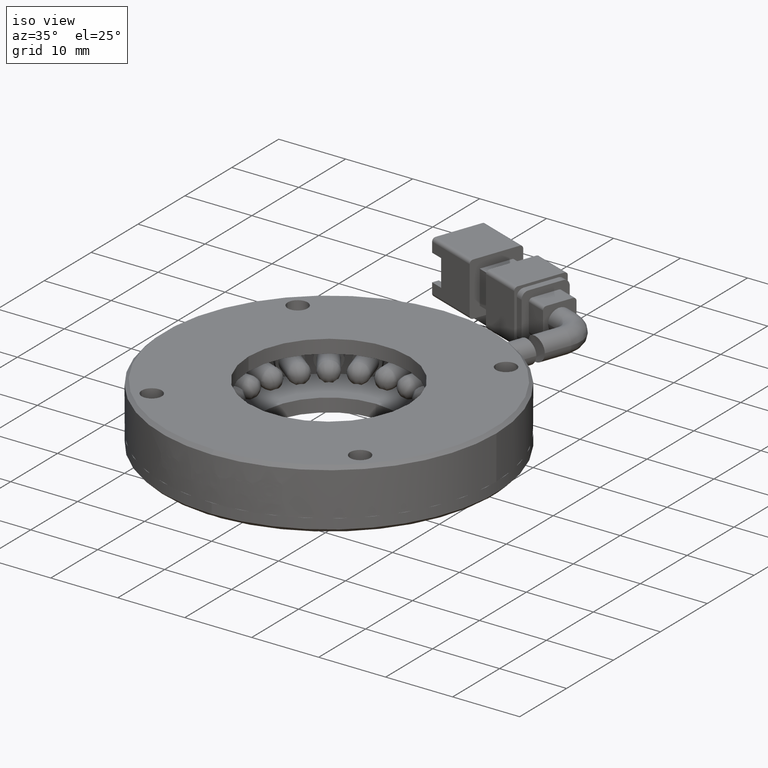
[diagram: clean part render]
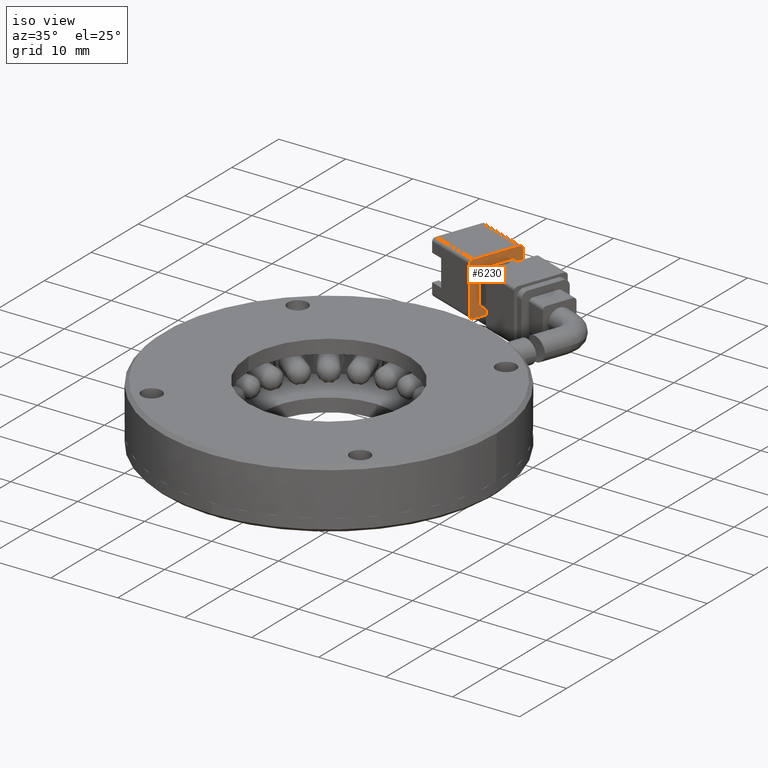
[diagram: same view with one face highlighted and labeled with its STEP entity id]
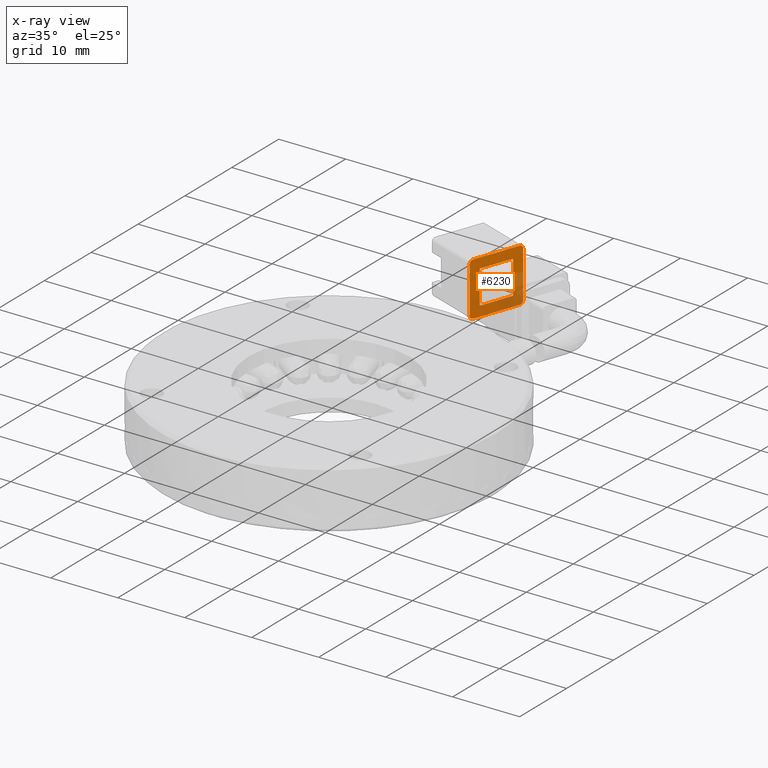
[diagram: x-ray of the same camera — body ghosted, the highlighted face saturated]
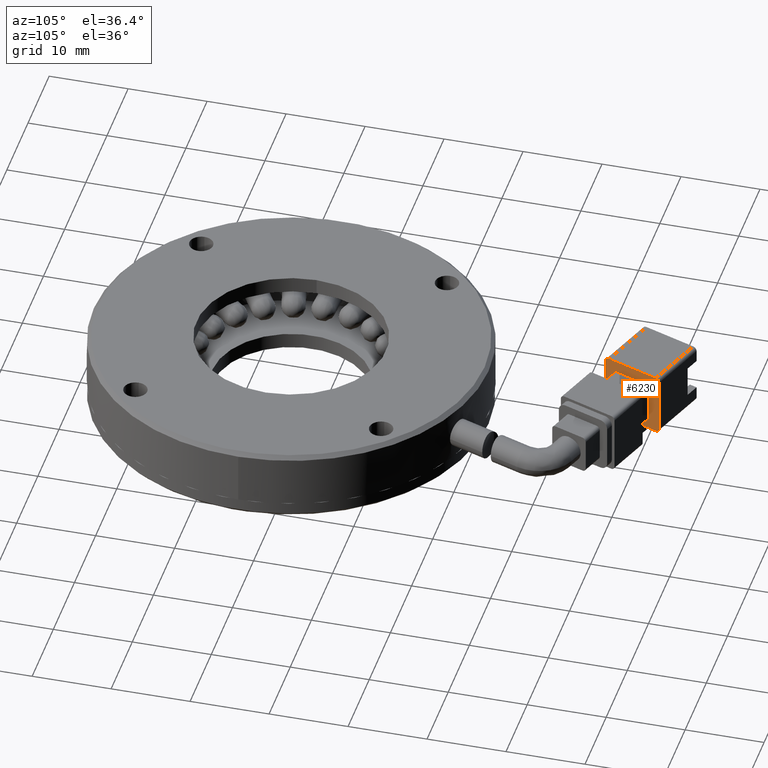
[diagram: same view with one face highlighted and labeled with its STEP entity id]
A machine part, iso view. The second image highlights one B-rep face of the part: STEP entity #6230.
The next image is the same camera in x-ray: the body ghosted, the highlighted face saturated — about 25% of this face is hidden behind the body in this view.
A second angle (auxiliary view) of the same face is appended — the face is thin or edge-on in the first view.
In plain terms, the highlighted planar face has unit normal (0.9397, -0.342, -0).
Its self-contained STEP definition (entity closure, byte-faithful):
#269 = DIRECTION ( 'NONE',  ( 0.9396926207859084300, -0.3420201433256689900, -2.200085921048892600E-016 ) ) ;
#388 = CARTESIAN_POINT ( 'NONE',  ( -126.7747421650352400, 44.70819623715603100, -3.999999999999933400 ) ) ;
#545 = AXIS2_PLACEMENT_3D ( 'NONE', #2363, #3334, #3422 ) ;
#549 = EDGE_CURVE ( 'NONE', #16251, #4658, #15040, .T. ) ;
#599 = DIRECTION ( 'NONE',  ( 0.0000000000000000000, 0.0000000000000000000, 1.000000000000000000 ) ) ;
#647 = EDGE_CURVE ( 'NONE', #24145, #6801, #7918, .T. ) ;
#745 = DIRECTION ( 'NONE',  ( -0.3420201433256692100, -0.9396926207859083200, 2.903288705414649500E-017 ) ) ;
#983 = VERTEX_POINT ( 'NONE', #8931 ) ;
#1137 = VERTEX_POINT ( 'NONE', #18150 ) ;
#1159 = ORIENTED_EDGE ( 'NONE', *, *, #24548, .T. ) ;
#1225 = CIRCLE ( 'NONE', #10808, 0.5000000000000013300 ) ;
#1791 = CARTESIAN_POINT ( 'NONE',  ( -124.5516112334184100, 50.81619827226441500, -2.999999999999930700 ) ) ;
#1881 = DIRECTION ( 'NONE',  ( -0.3420201433256689900, -0.9396926207859084300, 7.782399606232325600E-017 ) ) ;
#2257 = ORIENTED_EDGE ( 'NONE', *, *, #24884, .T. ) ;
#2363 = CARTESIAN_POINT ( 'NONE',  ( -126.6037320933724400, 45.17804254754897600, -3.999999999999934300 ) ) ;
#2822 = ORIENTED_EDGE ( 'NONE', *, *, #22754, .T. ) ;
#3334 = DIRECTION ( 'NONE',  ( -0.9396926207859082100, 0.3420201433256692100, 2.200085921048892100E-016 ) ) ;
#3422 = DIRECTION ( 'NONE',  ( 0.0000000000000000000, 0.0000000000000000000, 1.000000000000000000 ) ) ;
#3520 = DIRECTION ( 'NONE',  ( 0.3420201433256689900, 0.9396926207859084300, -7.782399606232325600E-017 ) ) ;
#3558 = FACE_OUTER_BOUND ( 'NONE', #12011, .T. ) ;
#4122 = CARTESIAN_POINT ( 'NONE',  ( -124.2095910900927600, 51.75589089305034900, 3.000000000000083500 ) ) ;
#4181 = EDGE_CURVE ( 'NONE', #16891, #24791, #6681, .T. ) ;
#4211 = PLANE ( 'NONE',  #19945 ) ;
#4658 = VERTEX_POINT ( 'NONE', #24165 ) ;
#4743 = ORIENTED_EDGE ( 'NONE', *, *, #15493, .T. ) ;
#5197 = CARTESIAN_POINT ( 'NONE',  ( -126.2617119500467900, 46.11773516833485300, -2.999999999999921000 ) ) ;
#6144 = DIRECTION ( 'NONE',  ( 0.0000000000000000000, 0.0000000000000000000, 1.000000000000000000 ) ) ;
#6230 = ADVANCED_FACE ( 'NONE', ( #19436, #3558 ), #4211, .T. ) ;
#6329 = AXIS2_PLACEMENT_3D ( 'NONE', #24448, #12522, #599 ) ;
#6355 = ORIENTED_EDGE ( 'NONE', *, *, #549, .T. ) ;
#6405 = VECTOR ( 'NONE', #14319, 1000.000000000000000 ) ;
#6681 = LINE ( 'NONE', #17622, #21938 ) ;
#6801 = VERTEX_POINT ( 'NONE', #22394 ) ;
#6885 = DIRECTION ( 'NONE',  ( 0.3420201433256689900, 0.9396926207859084300, -7.782399606232325600E-017 ) ) ;
#6912 = VECTOR ( 'NONE', #745, 999.9999999999998900 ) ;
#7069 = EDGE_CURVE ( 'NONE', #12733, #15643, #9530, .T. ) ;
#7126 = VECTOR ( 'NONE', #24469, 1000.000000000000000 ) ;
#7365 = EDGE_CURVE ( 'NONE', #17885, #6801, #22294, .T. ) ;
#7761 = VECTOR ( 'NONE', #18366, 999.9999999999998900 ) ;
#7918 = CIRCLE ( 'NONE', #545, 0.5000000000000022200 ) ;
#7944 = DIRECTION ( 'NONE',  ( 0.9396926207859082100, -0.3420201433256692100, -2.200085921048892100E-016 ) ) ;
#8062 = ORIENTED_EDGE ( 'NONE', *, *, #11905, .T. ) ;
#8379 = LINE ( 'NONE', #16473, #7126 ) ;
#8876 = LINE ( 'NONE', #17433, #14172 ) ;
#8896 = VECTOR ( 'NONE', #23395, 1000.000000000000000 ) ;
#8931 = CARTESIAN_POINT ( 'NONE',  ( -126.2617119500467600, 46.11773516833486000, 2.000000000000079900 ) ) ;
#9479 = ORIENTED_EDGE ( 'NONE', *, *, #7069, .T. ) ;
#9530 = LINE ( 'NONE', #25393, #8896 ) ;
#9557 = EDGE_CURVE ( 'NONE', #24791, #983, #8379, .T. ) ;
#9564 = LINE ( 'NONE', #25477, #24818 ) ;
#9781 = VECTOR ( 'NONE', #6885, 999.9999999999998900 ) ;
#9869 = EDGE_LOOP ( 'NONE', ( #15240, #25709, #18708, #2257 ) ) ;
#10105 = CARTESIAN_POINT ( 'NONE',  ( -126.6037320933724400, 45.17804254754896900, -4.499999999999918300 ) ) ;
#10453 = CARTESIAN_POINT ( 'NONE',  ( -124.0385810184299200, 52.22573720344327300, 3.000000000000072800 ) ) ;
#10749 = CARTESIAN_POINT ( 'NONE',  ( -125.1073939663226200, 49.28919776348730200, -4.499999999999927200 ) ) ;
#10756 = CARTESIAN_POINT ( 'NONE',  ( -124.5516112334184000, 50.81619827226444400, 2.000000000000075500 ) ) ;
#10808 = AXIS2_PLACEMENT_3D ( 'NONE', #19866, #7944, #21867 ) ;
#11719 = CARTESIAN_POINT ( 'NONE',  ( -126.6037320933724400, 45.17804254754899100, 3.500000000000080400 ) ) ;
#11905 = EDGE_CURVE ( 'NONE', #23013, #13982, #17466, .T. ) ;
#12011 = EDGE_LOOP ( 'NONE', ( #1159, #6355, #25812, #9479, #21498, #8062, #4743, #14085, #18170, #2822 ) ) ;
#12195 = CARTESIAN_POINT ( 'NONE',  ( -124.2095910900927300, 51.75589089305032800, -3.999999999999934300 ) ) ;
#12522 = DIRECTION ( 'NONE',  ( -0.9396926207859082100, 0.3420201433256692100, 2.200085921048892100E-016 ) ) ;
#12733 = VERTEX_POINT ( 'NONE', #17503 ) ;
#13449 = LINE ( 'NONE', #17869, #18126 ) ;
#13545 = DIRECTION ( 'NONE',  ( 0.3420201433256689900, 0.9396926207859084300, -7.782399606232325600E-017 ) ) ;
#13982 = VERTEX_POINT ( 'NONE', #11719 ) ;
#14085 = ORIENTED_EDGE ( 'NONE', *, *, #7365, .T. ) ;
#14172 = VECTOR ( 'NONE', #3520, 999.9999999999998900 ) ;
#14195 = DIRECTION ( 'NONE',  ( -0.3420201433256689900, -0.9396926207859084300, 7.782399606232325600E-017 ) ) ;
#14319 = DIRECTION ( 'NONE',  ( -2.333578247978733300E-016, 2.116735384756109300E-018, -1.000000000000000000 ) ) ;
#14872 = VERTEX_POINT ( 'NONE', #10756 ) ;
#15040 = LINE ( 'NONE', #20810, #9781 ) ;
#15179 = EDGE_CURVE ( 'NONE', #14872, #16891, #13449, .T. ) ;
#15211 = CIRCLE ( 'NONE', #23677, 0.5000000000000017800 ) ;
#15240 = ORIENTED_EDGE ( 'NONE', *, *, #15179, .T. ) ;
#15493 = EDGE_CURVE ( 'NONE', #13982, #17885, #1225, .T. ) ;
#15643 = VERTEX_POINT ( 'NONE', #10453 ) ;
#15673 = EDGE_CURVE ( 'NONE', #12733, #4658, #23314, .T. ) ;
#16251 = VERTEX_POINT ( 'NONE', #10749 ) ;
#16473 = CARTESIAN_POINT ( 'NONE',  ( -126.2617119500467600, 46.11773516833484600, -3.999999999999934300 ) ) ;
#16891 = VERTEX_POINT ( 'NONE', #1791 ) ;
#17433 = CARTESIAN_POINT ( 'NONE',  ( -124.2095910900927200, 51.75589089305032800, 2.000000000000079900 ) ) ;
#17466 = LINE ( 'NONE', #20702, #6912 ) ;
#17503 = CARTESIAN_POINT ( 'NONE',  ( -124.0385810184299100, 52.22573720344327300, -3.999999999999917800 ) ) ;
#17622 = CARTESIAN_POINT ( 'NONE',  ( -124.2095910900927300, 51.75589089305032800, -2.999999999999935200 ) ) ;
#17869 = CARTESIAN_POINT ( 'NONE',  ( -124.5516112334183700, 50.81619827226445800, -3.999999999999934300 ) ) ;
#17885 = VERTEX_POINT ( 'NONE', #20815 ) ;
#17961 = DIRECTION ( 'NONE',  ( -2.333578247978733300E-016, 2.116735384756109300E-018, -1.000000000000000000 ) ) ;
#18031 = DIRECTION ( 'NONE',  ( 0.9396926207859082100, -0.3420201433256692100, -2.200085921048892100E-016 ) ) ;
#18126 = VECTOR ( 'NONE', #17961, 1000.000000000000000 ) ;
#18150 = CARTESIAN_POINT ( 'NONE',  ( -125.7059292171425500, 47.64473567711195300, -4.499999999999927200 ) ) ;
#18170 = ORIENTED_EDGE ( 'NONE', *, *, #647, .F. ) ;
#18322 = LINE ( 'NONE', #18451, #7761 ) ;
#18366 = DIRECTION ( 'NONE',  ( 0.3420201433256689900, 0.9396926207859084300, -7.782399606232325600E-017 ) ) ;
#18451 = CARTESIAN_POINT ( 'NONE',  ( -124.2095910900927300, 51.75589089305032800, -4.499999999999919200 ) ) ;
#18708 = ORIENTED_EDGE ( 'NONE', *, *, #9557, .T. ) ;
#19436 = FACE_BOUND ( 'NONE', #9869, .T. ) ;
#19866 = CARTESIAN_POINT ( 'NONE',  ( -126.6037320933724400, 45.17804254754896900, 3.000000000000061700 ) ) ;
#19945 = AXIS2_PLACEMENT_3D ( 'NONE', #12195, #269, #14195 ) ;
#20702 = CARTESIAN_POINT ( 'NONE',  ( -126.6037320933724400, 45.17804254754897600, 3.500000000000080400 ) ) ;
#20810 = CARTESIAN_POINT ( 'NONE',  ( -124.2095910900927300, 51.75589089305032800, -4.499999999999936100 ) ) ;
#20815 = CARTESIAN_POINT ( 'NONE',  ( -126.7747421650352600, 44.70819623715601700, 3.000000000000061700 ) ) ;
#21498 = ORIENTED_EDGE ( 'NONE', *, *, #22610, .T. ) ;
#21867 = DIRECTION ( 'NONE',  ( 0.0000000000000000000, 0.0000000000000000000, 1.000000000000000000 ) ) ;
#21938 = VECTOR ( 'NONE', #1881, 999.9999999999998900 ) ;
#22294 = LINE ( 'NONE', #388, #6405 ) ;
#22394 = CARTESIAN_POINT ( 'NONE',  ( -126.7747421650352900, 44.70819623715601700, -3.999999999999926300 ) ) ;
#22610 = EDGE_CURVE ( 'NONE', #15643, #23013, #15211, .T. ) ;
#22754 = EDGE_CURVE ( 'NONE', #24145, #1137, #18322, .T. ) ;
#23013 = VERTEX_POINT ( 'NONE', #23324 ) ;
#23314 = CIRCLE ( 'NONE', #6329, 0.5000000000000017800 ) ;
#23324 = CARTESIAN_POINT ( 'NONE',  ( -124.2095910900927600, 51.75589089305034900, 3.500000000000080400 ) ) ;
#23395 = DIRECTION ( 'NONE',  ( 2.333578247978733300E-016, -2.116735384756109300E-018, 1.000000000000000000 ) ) ;
#23677 = AXIS2_PLACEMENT_3D ( 'NONE', #4122, #18031, #6144 ) ;
#24145 = VERTEX_POINT ( 'NONE', #10105 ) ;
#24165 = CARTESIAN_POINT ( 'NONE',  ( -124.2095910900927400, 51.75589089305033500, -4.499999999999928100 ) ) ;
#24448 = CARTESIAN_POINT ( 'NONE',  ( -124.2095910900927400, 51.75589089305033500, -3.999999999999917800 ) ) ;
#24469 = DIRECTION ( 'NONE',  ( 2.333578247978733300E-016, -2.116735384756109300E-018, 1.000000000000000000 ) ) ;
#24548 = EDGE_CURVE ( 'NONE', #1137, #16251, #9564, .T. ) ;
#24791 = VERTEX_POINT ( 'NONE', #5197 ) ;
#24818 = VECTOR ( 'NONE', #13545, 999.9999999999998900 ) ;
#24884 = EDGE_CURVE ( 'NONE', #983, #14872, #8876, .T. ) ;
#25393 = CARTESIAN_POINT ( 'NONE',  ( -124.0385810184299100, 52.22573720344325900, -3.999999999999934300 ) ) ;
#25477 = CARTESIAN_POINT ( 'NONE',  ( -124.2095910900927300, 51.75589089305032800, -4.499999999999936100 ) ) ;
#25709 = ORIENTED_EDGE ( 'NONE', *, *, #4181, .T. ) ;
#25812 = ORIENTED_EDGE ( 'NONE', *, *, #15673, .F. ) ;